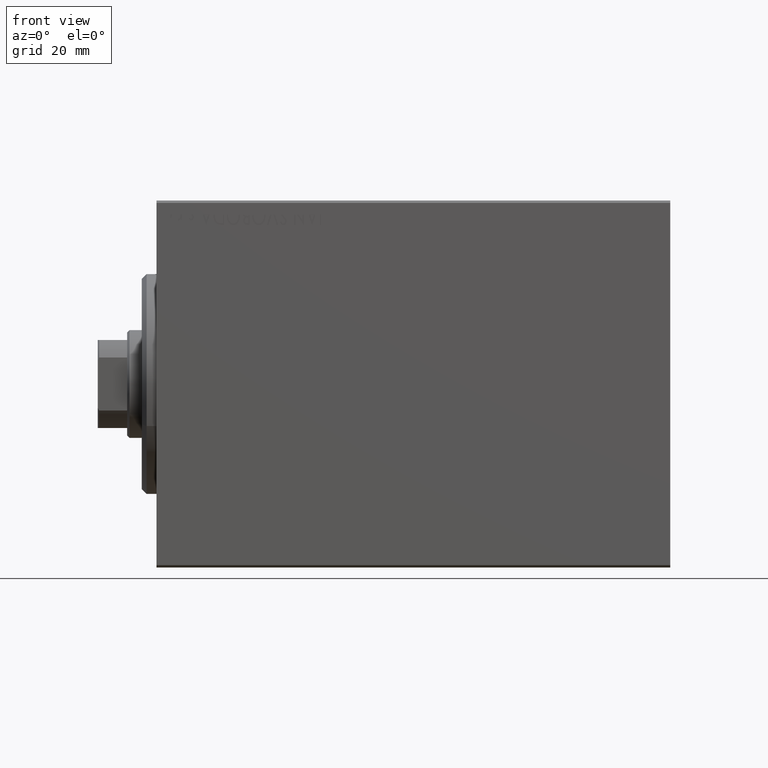
[diagram: clean part render]
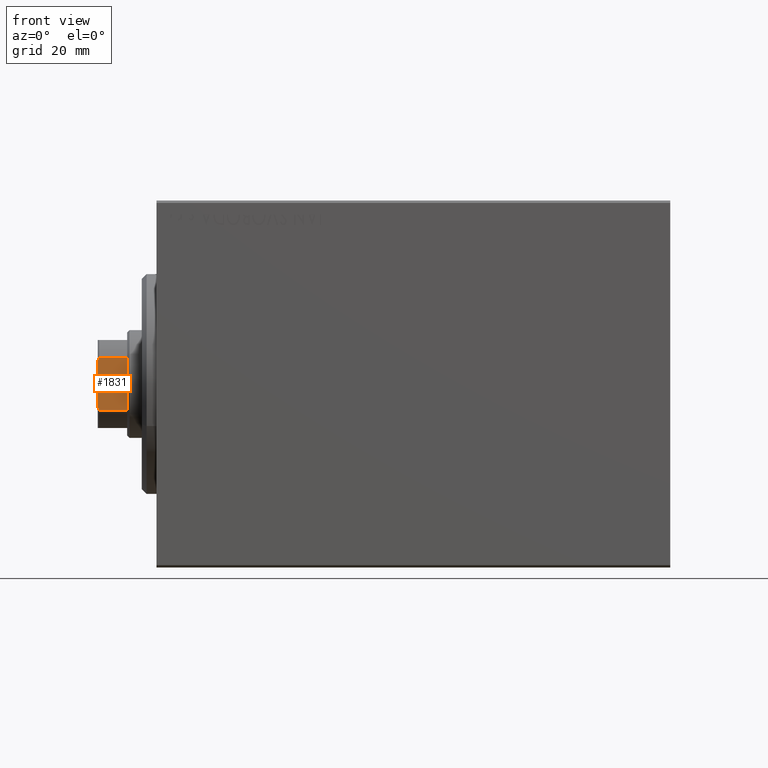
[diagram: same view with one face highlighted and labeled with its STEP entity id]
A machine part, front view. The second image highlights one B-rep face of the part: STEP entity #1831.
In plain terms, the highlighted planar face has unit normal (0, 1, 0).
Its self-contained STEP definition (entity closure, byte-faithful):
#242 = DIRECTION ( 'NONE',  ( 1.000000000000000000, 0.000000000000000000, 0.000000000000000000 ) ) ;
#584 = ORIENTED_EDGE ( 'NONE', *, *, #27636, .T. ) ;
#955 = VERTEX_POINT ( 'NONE', #29678 ) ;
#1227 = LINE ( 'NONE', #21064, #7355 ) ;
#1333 = FACE_OUTER_BOUND ( 'NONE', #18440, .T. ) ;
#1831 = ADVANCED_FACE ( 'NONE', ( #1333 ), #28428, .F. ) ;
#2849 = CARTESIAN_POINT ( 'NONE',  ( -5.207299490555451271, -9.000000000000001776, 106.8035449543006763 ) ) ;
#4689 = CARTESIAN_POINT ( 'NONE',  ( -8.999999999999998224, -9.000000000000001776, 107.0000000000000142 ) ) ;
#4737 = VERTEX_POINT ( 'NONE', #15426 ) ;
#5714 = CARTESIAN_POINT ( 'NONE',  ( -4.799999999999934097, -9.000000000000001776, 107.0000000000000142 ) ) ;
#5864 = VECTOR ( 'NONE', #42233, 1000.000000000000000 ) ;
#7355 = VECTOR ( 'NONE', #14448, 1000.000000000000000 ) ;
#7571 = CARTESIAN_POINT ( 'NONE',  ( -5.408326913195988794, -8.999999999999998224, 106.6999999999999886 ) ) ;
#7926 = EDGE_CURVE ( 'NONE', #21294, #28514, #11824, .T. ) ;
#8413 = EDGE_CURVE ( 'NONE', #32368, #12194, #28477, .T. ) ;
#8941 = ORIENTED_EDGE ( 'NONE', *, *, #39787, .T. ) ;
#9215 = AXIS2_PLACEMENT_3D ( 'NONE', #21824, #31733, #41647 ) ;
#9458 = CARTESIAN_POINT ( 'NONE',  ( -5.408326913195988794, -8.999999999999998224, 106.6999999999999886 ) ) ;
#10580 = LINE ( 'NONE', #20523, #43195 ) ;
#11824 = LINE ( 'NONE', #38496, #5864 ) ;
#12194 = VERTEX_POINT ( 'NONE', #38905 ) ;
#14448 = DIRECTION ( 'NONE',  ( -0.000000000000000000, -0.000000000000000000, 1.000000000000000000 ) ) ;
#15426 = CARTESIAN_POINT ( 'NONE',  ( 5.408326913195988794, -8.999999999999998224, 106.6999999999999886 ) ) ;
#15703 = VECTOR ( 'NONE', #18134, 1000.000000000000000 ) ;
#17084 = CARTESIAN_POINT ( 'NONE',  ( -5.408326913195988794, -8.999999999999998224, 101.0000000000000284 ) ) ;
#18134 = DIRECTION ( 'NONE',  ( 1.000000000000000000, 0.000000000000000000, 0.000000000000000000 ) ) ;
#18440 = EDGE_LOOP ( 'NONE', ( #29992, #28345, #37747, #584, #31852, #8941 ) ) ;
#19168 = CARTESIAN_POINT ( 'NONE',  ( -5.004607318780257330, -9.000000000000001776, 106.9037142029269205 ) ) ;
#20523 = CARTESIAN_POINT ( 'NONE',  ( -8.999999999999998224, -9.000000000000001776, 101.0000000000000000 ) ) ;
#21064 = CARTESIAN_POINT ( 'NONE',  ( 5.408326913195988794, -8.999999999999998224, -0.001000000000001000089 ) ) ;
#21294 = VERTEX_POINT ( 'NONE', #17084 ) ;
#21824 = CARTESIAN_POINT ( 'NONE',  ( -8.999999999999998224, -9.000000000000001776, 107.0000000000000142 ) ) ;
#22000 = CARTESIAN_POINT ( 'NONE',  ( 5.408326913195988794, -8.999999999999998224, 106.6999999999999886 ) ) ;
#27636 = EDGE_CURVE ( 'NONE', #32368, #28514, #33332, .T. ) ;
#28345 = ORIENTED_EDGE ( 'NONE', *, *, #32784, .T. ) ;
#28428 = PLANE ( 'NONE',  #9215 ) ;
#28477 = LINE ( 'NONE', #4689, #15703 ) ;
#28514 = VERTEX_POINT ( 'NONE', #7571 ) ;
#29678 = CARTESIAN_POINT ( 'NONE',  ( 5.408326913195988794, -8.999999999999998224, 101.0000000000000284 ) ) ;
#29992 = ORIENTED_EDGE ( 'NONE', *, *, #37715, .T. ) ;
#31733 = DIRECTION ( 'NONE',  ( 0.000000000000000000, 1.000000000000000000, 0.000000000000000000 ) ) ;
#31852 = ORIENTED_EDGE ( 'NONE', *, *, #7926, .F. ) ;
#31914 = CARTESIAN_POINT ( 'NONE',  ( 4.799999999999944755, -9.000000000000001776, 107.0000000000000142 ) ) ;
#32368 = VERTEX_POINT ( 'NONE', #36730 ) ;
#32784 = EDGE_CURVE ( 'NONE', #4737, #12194, #37816, .T. ) ;
#33332 = B_SPLINE_CURVE_WITH_KNOTS ( 'NONE', 3,
 ( #5714, #19168, #2849, #9458 ),
 .UNSPECIFIED., .F., .F.,
 ( 4, 4 ),
 ( 0.000000000000000000, 0.0006782784334759986260 ),
 .UNSPECIFIED. ) ;
#35431 = CARTESIAN_POINT ( 'NONE',  ( 5.207299490555455712, -8.999999999999998224, 106.8035449543006763 ) ) ;
#36730 = CARTESIAN_POINT ( 'NONE',  ( -4.799999999999934097, -9.000000000000001776, 107.0000000000000142 ) ) ;
#37715 = EDGE_CURVE ( 'NONE', #955, #4737, #1227, .T. ) ;
#37747 = ORIENTED_EDGE ( 'NONE', *, *, #8413, .F. ) ;
#37816 = B_SPLINE_CURVE_WITH_KNOTS ( 'NONE', 3,
 ( #22000, #35431, #38304, #31914 ),
 .UNSPECIFIED., .F., .F.,
 ( 4, 4 ),
 ( 0.000000000000000000, 0.0006782784334759876755 ),
 .UNSPECIFIED. ) ;
#38304 = CARTESIAN_POINT ( 'NONE',  ( 5.004607318780269765, -9.000000000000001776, 106.9037142029269205 ) ) ;
#38496 = CARTESIAN_POINT ( 'NONE',  ( -5.408326913195988794, -8.999999999999998224, -0.001000000000001000089 ) ) ;
#38905 = CARTESIAN_POINT ( 'NONE',  ( 4.799999999999944755, -9.000000000000001776, 107.0000000000000142 ) ) ;
#39787 = EDGE_CURVE ( 'NONE', #21294, #955, #10580, .T. ) ;
#41647 = DIRECTION ( 'NONE',  ( 0.000000000000000000, -0.000000000000000000, 1.000000000000000000 ) ) ;
#42233 = DIRECTION ( 'NONE',  ( -0.000000000000000000, -0.000000000000000000, 1.000000000000000000 ) ) ;
#43195 = VECTOR ( 'NONE', #242, 1000.000000000000000 ) ;